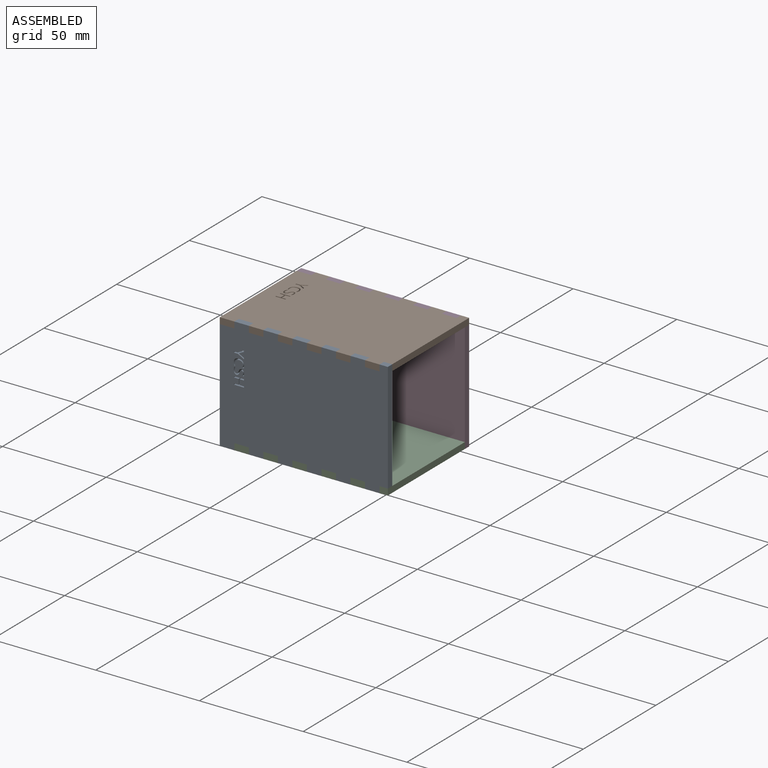
[diagram: assembled view]
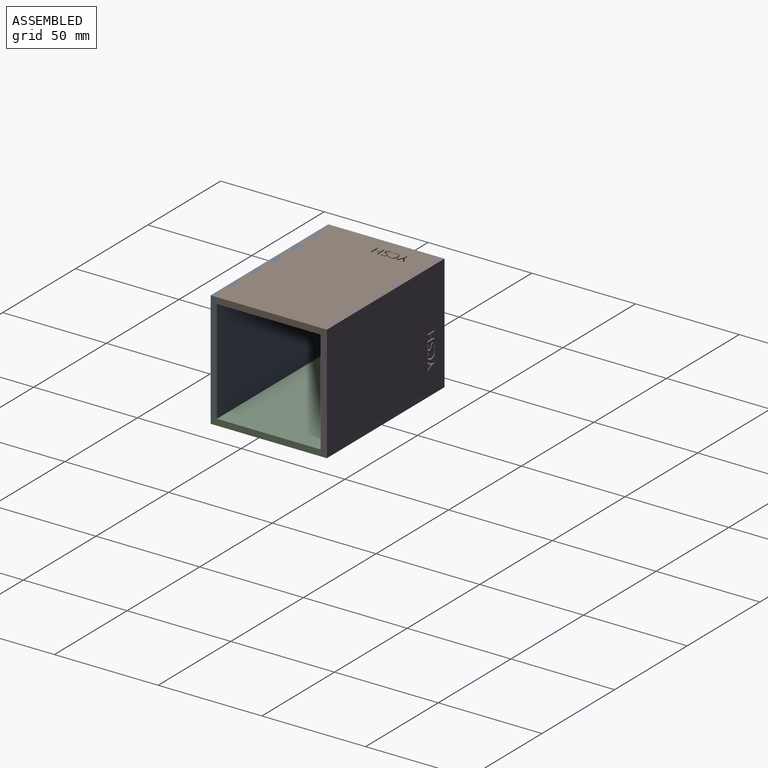
[diagram: assembled view, second angle]
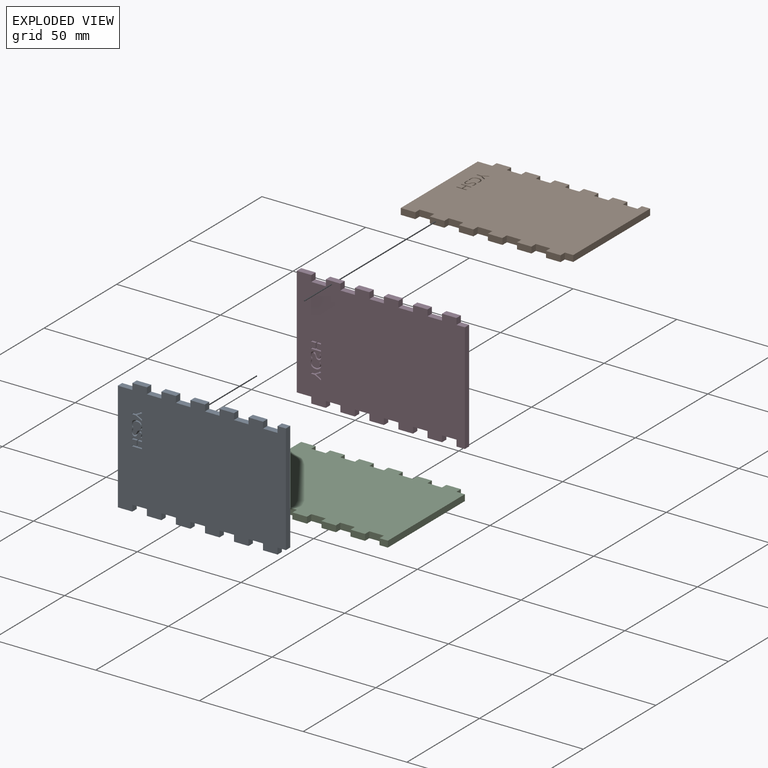
[diagram: exploded view]
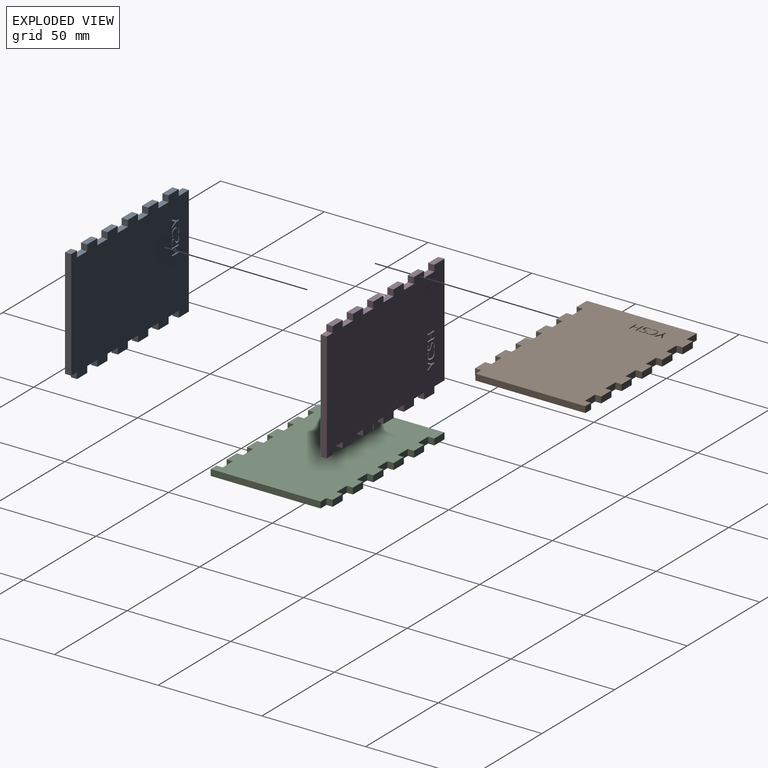
[diagram: exploded view, second angle]
ASSEMBLY  parts=4 mates=3
PART A: 111 faces, bbox 56x81x3 mm
  f0: plane 81x56mm, normal (0,0,1), area 4271.2mm2, adj f2,f3,f4,f5,f6,f7,f8,f9
  f1: plane 81x56mm, normal (0,0,-1), area 4271.2mm2, adj f2,f3,f4,f5,f6,f7,f8,f9
  f2: plane 7x3mm, normal (-1,0,0), area 21mm2, adj f0,f1,f3,f49
  f3: plane 53x3mm, normal (0,-1,0), area 159mm2, adj f0,f1,f2,f4
  f4: plane 7x3mm, normal (1,0,0), area 21mm2, adj f0,f1,f3,f5
  f5: plane 3x3mm, normal (0,1,0), area 9mm2, adj f0,f1,f4,f6
  f6: plane 7x3mm, normal (1,0,0), area 21mm2, adj f0,f1,f5,f7
  f7: plane 3x3mm, normal (0,-1,0), area 9mm2, adj f0,f1,f6,f8
  f8: plane 7x3mm, normal (1,0,0), area 21mm2, adj f0,f1,f7,f9
  f9: plane 3x3mm, normal (0,1,0), area 9mm2, adj f0,f1,f8,f10
  f10: plane 7x3mm, normal (1,0,0), area 21mm2, adj f0,f1,f9,f11
  f11: plane 3x3mm, normal (0,-1,0), area 9mm2, adj f0,f1,f10,f12
  f12: plane 7x3mm, normal (1,0,0), area 21mm2, adj f0,f1,f11,f13
  f13: plane 3x3mm, normal (0,1,0), area 9mm2, adj f0,f1,f12,f14
  f14: plane 7x3mm, normal (1,0,0), area 21mm2, adj f0,f1,f13,f15
  f15: plane 3x3mm, normal (0,-1,0), area 9mm2, adj f0,f1,f14,f16
  f16: plane 7x3mm, normal (1,0,0), area 21mm2, adj f0,f1,f15,f17
  f17: plane 3x3mm, normal (0,1,0), area 9mm2, adj f0,f1,f16,f18
  f18: plane 7x3mm, normal (1,0,0), area 21mm2, adj f0,f1,f17,f19
  f19: plane 3x3mm, normal (0,-1,0), area 9mm2, adj f0,f1,f18,f20
  f20: plane 7x3mm, normal (1,0,0), area 21mm2, adj f0,f1,f19,f21
  f21: plane 3x3mm, normal (0,1,0), area 9mm2, adj f0,f1,f20,f22
  f22: plane 7x3mm, normal (1,0,0), area 21mm2, adj f0,f1,f21,f23
  f23: plane 3x3mm, normal (0,-1,0), area 9mm2, adj f0,f1,f22,f24
  f24: plane 7x3mm, normal (1,0,0), area 21mm2, adj f0,f1,f23,f25
  f25: plane 3x3mm, normal (0,1,0), area 9mm2, adj f0,f1,f24,f26
  f26: plane 4x3mm, normal (1,0,0), area 12mm2, adj f0,f1,f25,f27
  f27: plane 53x3mm, normal (0,1,0), area 159mm2, adj f0,f1,f26,f28
  f28: plane 4x3mm, normal (-1,0,0), area 12mm2, adj f0,f1,f27,f29
  f29: plane 3x3mm, normal (0,-1,0), area 9mm2, adj f0,f1,f28,f30
  f30: plane 7x3mm, normal (-1,0,0), area 21mm2, adj f0,f1,f29,f31
  f31: plane 3x3mm, normal (0,1,0), area 9mm2, adj f0,f1,f30,f32
  f32: plane 7x3mm, normal (-1,0,0), area 21mm2, adj f0,f1,f31,f33
  f33: plane 3x3mm, normal (0,-1,0), area 9mm2, adj f0,f1,f32,f34
  f34: plane 7x3mm, normal (-1,0,0), area 21mm2, adj f0,f1,f33,f35
  f35: plane 3x3mm, normal (0,1,0), area 9mm2, adj f0,f1,f34,f36
  f36: plane 7x3mm, normal (-1,0,0), area 21mm2, adj f0,f1,f35,f37
  f37: plane 3x3mm, normal (0,-1,0), area 9mm2, adj f0,f1,f36,f38
  f38: plane 7x3mm, normal (-1,0,0), area 21mm2, adj f0,f1,f37,f39
  f39: plane 3x3mm, normal (0,1,0), area 9mm2, adj f0,f1,f38,f40
  f40: plane 7x3mm, normal (-1,0,0), area 21mm2, adj f0,f1,f39,f41
  f41: plane 3x3mm, normal (0,-1,0), area 9mm2, adj f0,f1,f40,f42
  f42: plane 7x3mm, normal (-1,0,0), area 21mm2, adj f0,f1,f41,f43
  f43: plane 3x3mm, normal (0,1,0), area 9mm2, adj f0,f1,f42,f44
  f44: plane 7x3mm, normal (-1,0,0), area 21mm2, adj f0,f1,f43,f45
  f45: plane 3x3mm, normal (0,-1,0), area 9mm2, adj f0,f1,f44,f46
  f46: plane 7x3mm, normal (-1,0,0), area 21mm2, adj f0,f1,f45,f47
  f47: plane 3x3mm, normal (0,1,0), area 9mm2, adj f0,f1,f46,f48
  f48: plane 7x3mm, normal (-1,0,0), area 21mm2, adj f0,f1,f47,f49
  f49: plane 3x3mm, normal (0,-1,0), area 9mm2, adj f0,f1,f2,f48
  f50: plane 3x0.56mm, normal (0,1,0), area 1.7mm2, adj f0,f1,f51,f61
  f51: plane 4.85x3mm, normal (-1,0,0), area 14.5mm2, adj f0,f1,f50,f52
  f52: plane 3x0.56mm, normal (0,-1,0), area 1.7mm2, adj f0,f1,f51,f53
  f53: plane 3x2.06mm, normal (1,0,0), area 6.2mm2, adj f0,f1,f52,f54
  f54: plane 3x2.55mm, normal (0,-1,0), area 7.7mm2, adj f0,f1,f53,f55
  f55: plane 3x2.06mm, normal (-1,0,0), area 6.2mm2, adj f0,f1,f54,f56
  f56: plane 3x0.56mm, normal (0,-1,0), area 1.7mm2, adj f0,f1,f55,f57
  f57: plane 4.85x3mm, normal (1,0,0), area 14.5mm2, adj f0,f1,f56,f58
  f58: plane 3x0.56mm, normal (0,1,0), area 1.7mm2, adj f0,f1,f57,f59
  f59: plane 3x2.28mm, normal (-1,0,0), area 6.8mm2, adj f0,f1,f58,f60
  f60: plane 3x2.55mm, normal (0,1,0), area 7.7mm2, adj f0,f1,f59,f61
  f61: plane 3x2.28mm, normal (1,0,0), area 6.8mm2, adj f0,f1,f50,f60
  f62: extruded ~3x1mm, area 3.4mm2, adj f0,f1,f63,f86
  f63: extruded ~3x0.81mm, area 2.6mm2, adj f0,f1,f62,f64
  f64: extruded ~3x1.05mm, area 3.6mm2, adj f0,f1,f63,f65
  f65: extruded ~3x0.67mm, area 2.2mm2, adj f0,f1,f64,f66
  f66: extruded ~3x0.31mm, area 1.3mm2, adj f0,f1,f65,f67
  f67: extruded ~3x0.41mm, area 1.3mm2, adj f0,f1,f66,f68
  f68: extruded ~3x0.53mm, area 1.8mm2, adj f0,f1,f67,f69
  f69: extruded ~3x0.7mm, area 2.2mm2, adj f0,f1,f68,f70
  f70: extruded ~3x1.17mm, area 3.6mm2, adj f0,f1,f69,f71
  f71: plane 3x0.49mm, normal (-0.94,0.34,0), area 1.6mm2, adj f0,f1,f70,f72
  f72: extruded ~3x1.33mm, area 4.1mm2, adj f0,f1,f71,f73
  f73: extruded ~3x1.11mm, area 3.6mm2, adj f0,f1,f72,f74
  f74: extruded ~3x0.89mm, area 3.1mm2, adj f0,f1,f73,f75
  f75: extruded ~3x0.87mm, area 2.8mm2, adj f0,f1,f74,f76
  f76: extruded ~3x0.97mm, area 3.4mm2, adj f0,f1,f75,f77
  f77: extruded ~3x0.72mm, area 2.4mm2, adj f0,f1,f76,f78
  f78: extruded ~3x0.34mm, area 1.4mm2, adj f0,f1,f77,f79
  f79: extruded ~3x0.41mm, area 1.3mm2, adj f0,f1,f78,f80
  f80: extruded ~3x0.6mm, area 2.1mm2, adj f0,f1,f79,f81
  f81: extruded ~3x0.85mm, area 2.7mm2, adj f0,f1,f80,f82
  f82: extruded ~3x0.7mm, area 2.1mm2, adj f0,f1,f81,f83
  f83: extruded ~3x0.65mm, area 2mm2, adj f0,f1,f82,f84
  f84: plane 3x0.54mm, normal (1,0,0), area 1.6mm2, adj f0,f1,f83,f85
  f85: extruded ~3x1.33mm, area 4.1mm2, adj f0,f1,f84,f86
  f86: extruded ~3x1.26mm, area 4mm2, adj f0,f1,f62,f85
  f87: extruded ~3x1.26mm, area 4.2mm2, adj f0,f1,f88,f101
  f88: extruded ~3x1.1mm, area 3.4mm2, adj f0,f1,f87,f89
  f89: plane 3x0.48mm, normal (-0.9,0.44,0), area 1.6mm2, adj f0,f1,f88,f90
  f90: extruded ~3x1.33mm, area 4.1mm2, adj f0,f1,f89,f91
  f91: extruded ~3x1.24mm, area 3.9mm2, adj f0,f1,f90,f92
  f92: extruded ~3x0.87mm, area 3.6mm2, adj f0,f1,f91,f93
  f93: extruded ~3x1.31mm, area 4.1mm2, adj f0,f1,f92,f94
  f94: extruded ~3x1.85mm, area 5.9mm2, adj f0,f1,f93,f95
  f95: extruded ~3x1.65mm, area 5.5mm2, adj f0,f1,f94,f96
  f96: extruded ~3x1.24mm, area 3.8mm2, adj f0,f1,f95,f97
  f97: plane 3x0.49mm, normal (-1,0,0), area 1.5mm2, adj f0,f1,f96,f98
  f98: extruded ~3x1.16mm, area 3.5mm2, adj f0,f1,f97,f99
  f99: extruded ~3x1.27mm, area 4.3mm2, adj f0,f1,f98,f100
  f100: extruded ~3x1.47mm, area 4.7mm2, adj f0,f1,f99,f101
  f101: extruded ~3x1.46mm, area 4.7mm2, adj f0,f1,f87,f100
  f102: plane 3x2.42mm, normal (0.88,-0.47,0), area 8.2mm2, adj f0,f1,f103,f110
  f103: plane 3x2.42mm, normal (-0.88,-0.47,0), area 8.2mm2, adj f0,f1,f102,f104
  f104: plane 3x0.62mm, normal (0,-1,0), area 1.8mm2, adj f0,f1,f103,f105
  f105: plane 3x2.99mm, normal (0.88,0.47,0), area 10.2mm2, adj f0,f1,f104,f106
  f106: plane 3x1.85mm, normal (1,0,0), area 5.6mm2, adj f0,f1,f105,f107
  f107: plane 3x0.57mm, normal (0,1,0), area 1.7mm2, adj f0,f1,f106,f108
  f108: plane 3x1.88mm, normal (-1,0,0), area 5.6mm2, adj f0,f1,f107,f109
  f109: plane 3x2.97mm, normal (-0.88,0.48,0), area 10.1mm2, adj f0,f1,f108,f110
  f110: plane 3x0.61mm, normal (0,-1,0), area 1.8mm2, adj f0,f1,f102,f109
PART B: same geometry as A
PART C: same geometry as A
PART D: same geometry as A
PLACE A rot(axis=(0.58,0.58,-0.58),120deg) t=(90.42,-340.07,102.66)mm
PLACE B rot(axis=(0,0,-1),90deg) t=(90.42,-315.07,127.66)mm
PLACE C rot(axis=(0.71,0.71,0),180deg) t=(90.42,-315.07,77.66)mm
PLACE D rot(axis=(-0.58,-0.58,-0.58),120deg) t=(90.42,-290.07,102.66)mm
MATE fastened A.f1 <-> B.f6  axis (0,1,0) through (60.42,-340.07,130.66)mm
MATE fastened D.f1 <-> B.f30  axis (0,-1,0) through (123.42,-290.07,130.66)mm
MATE fastened C.f1 <-> D.f30  axis (0,0,1) through (123.42,-287.07,77.66)mm
